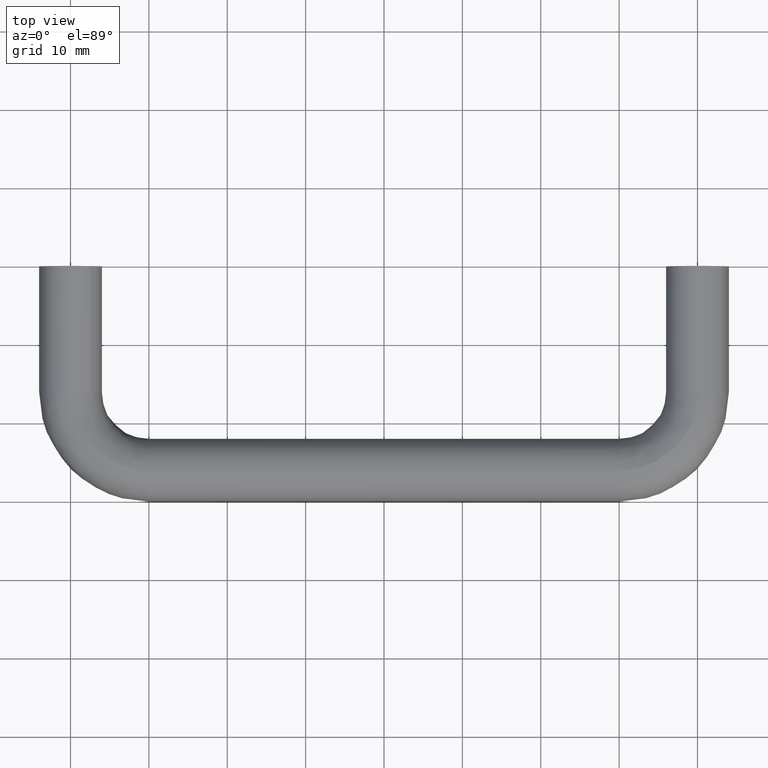
[diagram: clean part render]
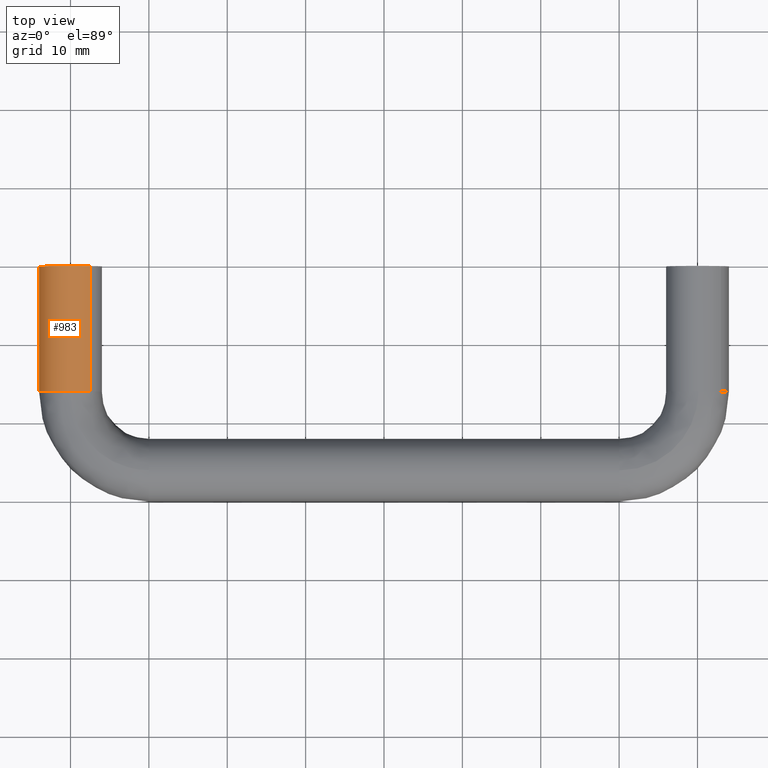
[diagram: same view with one face highlighted and labeled with its STEP entity id]
A machine part, top view. The second image highlights one B-rep face of the part: STEP entity #983.
In plain terms, the highlighted face is a freeform B-spline surface patch.
Its self-contained STEP definition (entity closure, byte-faithful):
#870=CARTESIAN_POINT('',(2.490058546550477,0.400000000017802,3.130432627409655));
#871=CARTESIAN_POINT('',(-0.640374080859178,0.400000000017802,5.620491173960132));
#872=CARTESIAN_POINT('',(-3.130432627409655,0.400000000017802,2.490058546550477));
#873=CARTESIAN_POINT('',(-5.620491173960132,0.400000000017801,-0.640374080859178));
#874=CARTESIAN_POINT('',(-2.490058546550477,0.400000000017802,-3.130432627409655));
#875=CARTESIAN_POINT('',(2.490058546550479,-16.410000000730300,3.130432627409655));
#876=CARTESIAN_POINT('',(-0.640374080859176,-16.410000000730292,5.620491173960132));
#877=CARTESIAN_POINT('',(-3.130432627409653,-16.410000000730300,2.490058546550477));
#878=CARTESIAN_POINT('',(-5.620491173960129,-16.410000000730292,-0.640374080859178));
#879=CARTESIAN_POINT('',(-2.490058546550475,-16.410000000730300,-3.130432627409655));
#887=(BOUNDED_SURFACE()B_SPLINE_SURFACE(2,1,((#870,#875),(#871,#876),(#872,#877),(#873,#878),(#874,#879)),.UNSPECIFIED.,.F.,.F.,.U.)B_SPLINE_SURFACE_WITH_KNOTS((3,2,3),(2,2),(0.0,6.627416997969518,13.254833995939039),(0.0,16.810000000748101),.UNSPECIFIED.)GEOMETRIC_REPRESENTATION_ITEM()RATIONAL_B_SPLINE_SURFACE(((1.0,1.0),(0.707106781186548,0.707106781186548),(1.0,1.0),(0.707106781186548,0.707106781186548),(1.0,1.0)))REPRESENTATION_ITEM('')SURFACE());
#888=CARTESIAN_POINT('',(-0.050264159701147,-16.000000000000160,3.999684176813156));
#889=VERTEX_POINT('',#888);
#890=CARTESIAN_POINT('',(2.490057939572067,-15.999999999999970,3.130433110221893));
#891=VERTEX_POINT('',#890);
#892=CARTESIAN_POINT('',(-0.050264159701147,-16.000000000000163,3.999684176813156));
#893=CARTESIAN_POINT('',(-0.025133072135318,-16.000000000000007,4.0));
#894=CARTESIAN_POINT('',(1.959370E-015,-16.0,4.0));
#895=CARTESIAN_POINT('',(1.396861663518624,-15.999999999999996,4.000000000000000));
#896=CARTESIAN_POINT('',(2.490057939572067,-15.999999999999972,3.130433110221893));
#904=(BOUNDED_CURVE()B_SPLINE_CURVE(2,(#892,#893,#894,#895,#896),.UNSPECIFIED.,.F.,.U.)B_SPLINE_CURVE_WITH_KNOTS((3,2,3),(0.747784295906977,0.750000000000000,0.857863818689484),.UNSPECIFIED.)CURVE()GEOMETRIC_REPRESENTATION_ITEM()RATIONAL_B_SPLINE_CURVE((0.994854295610061,0.997404141185025,1.0,0.873629675802106,0.856305637500315))REPRESENTATION_ITEM(''));
#905=EDGE_CURVE('',#889,#891,#904,.T.);
#906=ORIENTED_EDGE('',*,*,#905,.T.);
#907=CARTESIAN_POINT('',(2.490055038464335,0.0,3.130435417860953));
#908=VERTEX_POINT('',#907);
#909=CARTESIAN_POINT('',(2.490055038464335,0.0,3.130435417860953));
#910=CARTESIAN_POINT('',(2.490057939572067,-15.999999999999970,3.130433110221893));
#911=QUASI_UNIFORM_CURVE('',1,(#909,#910),.UNSPECIFIED.,.F.,.U.);
#912=EDGE_CURVE('',#908,#891,#911,.T.);
#913=ORIENTED_EDGE('',*,*,#912,.F.);
#914=CARTESIAN_POINT('',(-4.0,0.0,0.0));
#915=VERTEX_POINT('',#914);
#916=CARTESIAN_POINT('',(-4.0,0.0,0.0));
#917=CARTESIAN_POINT('',(-4.000000000000000,0.0,4.000000000000000));
#918=CARTESIAN_POINT('',(0.0,0.0,4.0));
#919=CARTESIAN_POINT('',(1.396860019082649,0.0,4.0));
#920=CARTESIAN_POINT('',(2.490055038464334,0.0,3.130435417860954));
#928=(BOUNDED_CURVE()B_SPLINE_CURVE(2,(#916,#917,#918,#919,#920),.UNSPECIFIED.,.F.,.U.)B_SPLINE_CURVE_WITH_KNOTS((3,2,3),(0.500000000000000,0.750000000000000,0.857863707754939),.UNSPECIFIED.)CURVE()GEOMETRIC_REPRESENTATION_ITEM()RATIONAL_B_SPLINE_CURVE((1.0,0.707106781186548,1.0,0.873629805770009,0.856305673134887))REPRESENTATION_ITEM(''));
#929=EDGE_CURVE('',#915,#908,#928,.T.);
#930=ORIENTED_EDGE('',*,*,#929,.F.);
#931=CARTESIAN_POINT('',(-2.490055038464335,-2.775558E-016,-3.130435417860953));
#932=VERTEX_POINT('',#931);
#933=CARTESIAN_POINT('',(-2.490055038464334,-2.775558E-016,-3.130435417860954));
#934=CARTESIAN_POINT('',(-4.0,0.0,-1.929373725991010));
#935=CARTESIAN_POINT('',(-4.0,0.0,0.0));
#943=(BOUNDED_CURVE()B_SPLINE_CURVE(2,(#933,#934,#935),.UNSPECIFIED.,.F.,.U.)B_SPLINE_CURVE_WITH_KNOTS((3,3),(0.357863707754939,0.500000000000000),.UNSPECIFIED.)CURVE()GEOMETRIC_REPRESENTATION_ITEM()RATIONAL_B_SPLINE_CURVE((0.856305673134887,0.833476975416539,1.0))REPRESENTATION_ITEM(''));
#944=EDGE_CURVE('',#932,#915,#943,.T.);
#945=ORIENTED_EDGE('',*,*,#944,.F.);
#946=CARTESIAN_POINT('',(-2.490057939572063,-15.999999999999970,-3.130433110221893));
#947=VERTEX_POINT('',#946);
#948=CARTESIAN_POINT('',(-2.490055038464335,-2.775558E-016,-3.130435417860953));
#949=CARTESIAN_POINT('',(-2.490057939572063,-15.999999999999970,-3.130433110221893));
#950=QUASI_UNIFORM_CURVE('',1,(#948,#949),.UNSPECIFIED.,.F.,.U.);
#951=EDGE_CURVE('',#932,#947,#950,.T.);
#952=ORIENTED_EDGE('',*,*,#951,.T.);
#953=CARTESIAN_POINT('',(-3.999999999999998,-16.0,0.0));
#954=VERTEX_POINT('',#953);
#955=CARTESIAN_POINT('',(-2.490057939572064,-15.999999999999966,-3.130433110221892));
#956=CARTESIAN_POINT('',(-3.999999999999998,-16.000000000000004,-1.929371919297421));
#957=CARTESIAN_POINT('',(-3.999999999999998,-16.0,0.0));
#965=(BOUNDED_CURVE()B_SPLINE_CURVE(2,(#955,#956,#957),.UNSPECIFIED.,.F.,.U.)B_SPLINE_CURVE_WITH_KNOTS((3,3),(0.357863818689483,0.500000000000000),.UNSPECIFIED.)CURVE()GEOMETRIC_REPRESENTATION_ITEM()RATIONAL_B_SPLINE_CURVE((0.856305637500316,0.833477105384441,1.0))REPRESENTATION_ITEM(''));
#966=EDGE_CURVE('',#947,#954,#965,.T.);
#967=ORIENTED_EDGE('',*,*,#966,.T.);
#968=CARTESIAN_POINT('',(-3.999999999999998,-16.0,0.0));
#969=CARTESIAN_POINT('',(-3.999999999999999,-15.999999999999995,3.950047719297902));
#970=CARTESIAN_POINT('',(-0.050264159701147,-16.000000000000156,3.999684176813156));
#978=(BOUNDED_CURVE()B_SPLINE_CURVE(2,(#968,#969,#970),.UNSPECIFIED.,.F.,.U.)B_SPLINE_CURVE_WITH_KNOTS((3,3),(0.500000000000000,0.747784295906976),.UNSPECIFIED.)CURVE()GEOMETRIC_REPRESENTATION_ITEM()RATIONAL_B_SPLINE_CURVE((1.0,0.709702640001523,0.994854295610060))REPRESENTATION_ITEM(''));
#979=EDGE_CURVE('',#954,#889,#978,.T.);
#980=ORIENTED_EDGE('',*,*,#979,.T.);
#981=EDGE_LOOP('',(#906,#913,#930,#945,#952,#967,#980));
#982=FACE_OUTER_BOUND('',#981,.T.);
#983=ADVANCED_FACE('',(#982),#887,.T.);